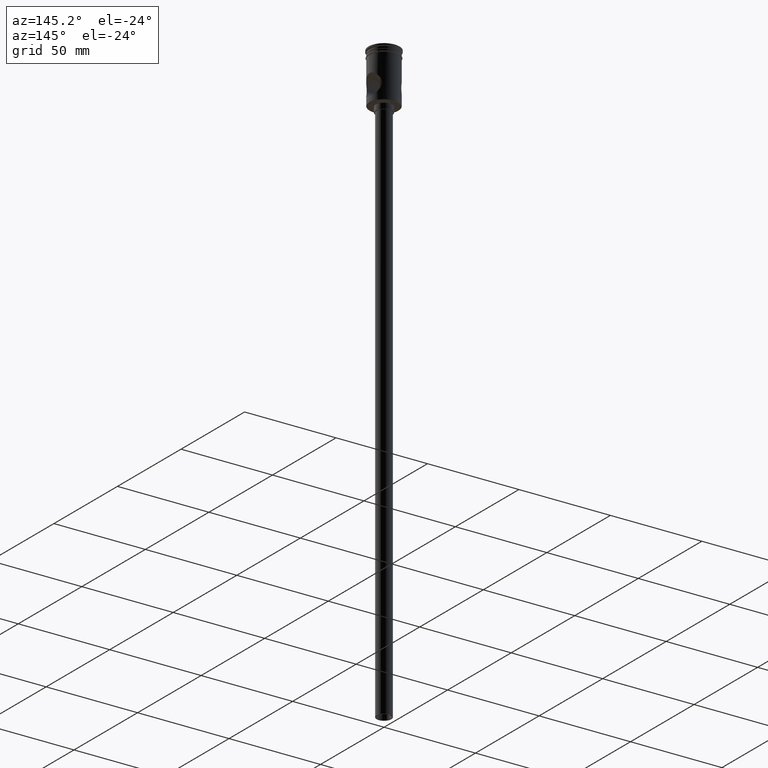
[diagram: clean part render]
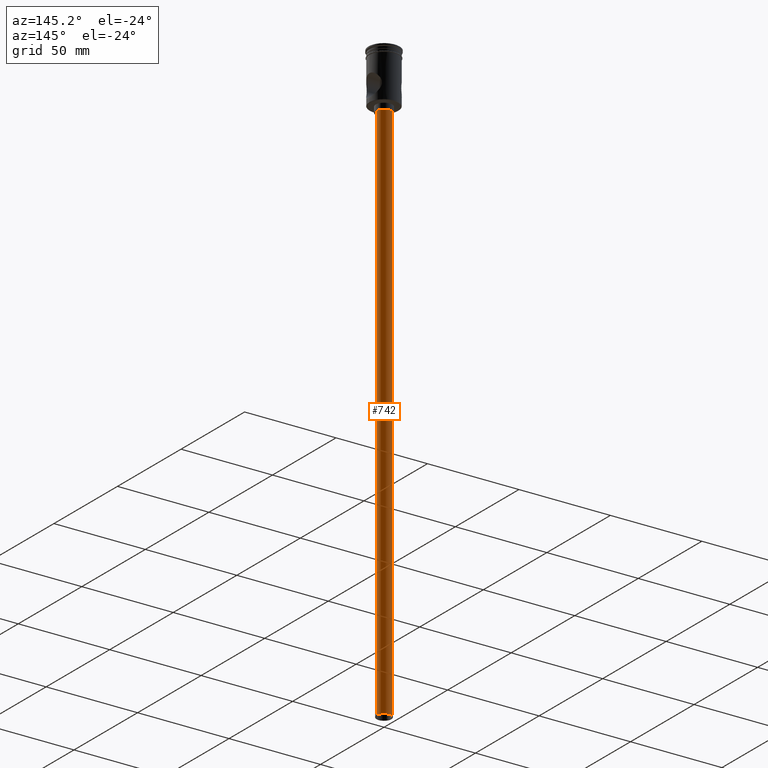
[diagram: same view with one face highlighted and labeled with its STEP entity id]
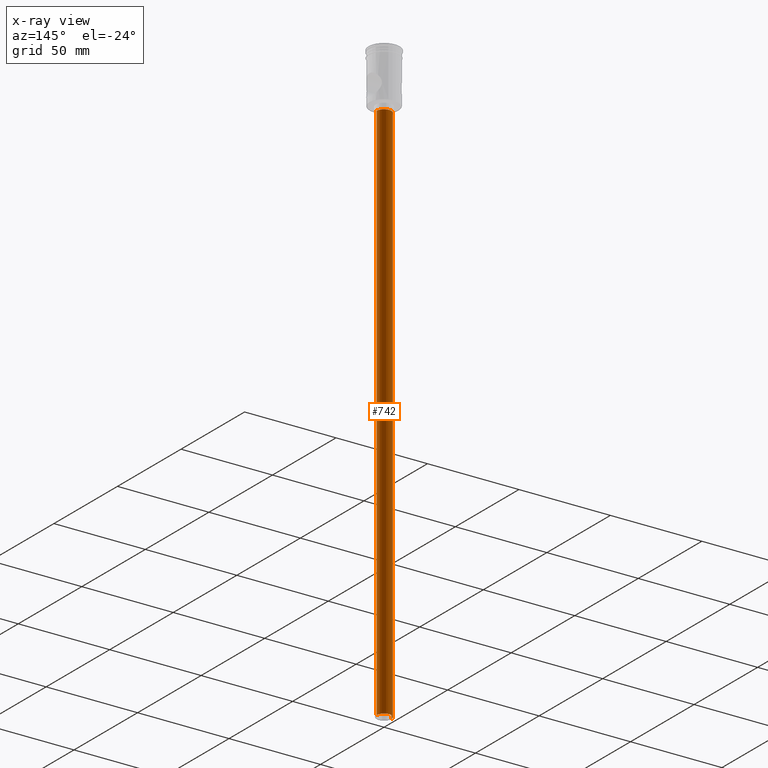
[diagram: x-ray of the same camera — body ghosted, the highlighted face saturated]
A machine part, auxiliary view. The second image highlights one B-rep face of the part: STEP entity #742.
The next image is the same camera in x-ray: the body ghosted, the highlighted face saturated — about 0% of this face is hidden behind the body in this view.
In plain terms, the highlighted cylindrical surface (edge-blend (fillet) strip) has radius 4 mm, axis along (-0, -0, 1).
Its self-contained STEP definition (entity closure, byte-faithful):
#4 = DIRECTION ( 'NONE',  ( -1.000000000000000000, 0.000000000000000000, 0.000000000000000000 ) ) ;
#32 = ORIENTED_EDGE ( 'NONE', *, *, #269, .T. ) ;
#147 = EDGE_LOOP ( 'NONE', ( #1203, #32, #348, #568 ) ) ;
#153 = EDGE_CURVE ( 'NONE', #1032, #475, #169, .T. ) ;
#169 = CIRCLE ( 'NONE', #1066, 4.000000000000000000 ) ;
#230 = CARTESIAN_POINT ( 'NONE',  ( 4.000000000000000000, 0.000000000000000000, -327.5000000000000000 ) ) ;
#266 = LINE ( 'NONE', #745, #267 ) ;
#267 = VECTOR ( 'NONE', #503, 1000.000000000000000 ) ;
#269 = EDGE_CURVE ( 'NONE', #1164, #1032, #266, .T. ) ;
#277 = CARTESIAN_POINT ( 'NONE',  ( -4.000000000000000000, 4.898587196589412829E-16, -327.5000000000000000 ) ) ;
#297 = DIRECTION ( 'NONE',  ( 1.000000000000000000, 0.000000000000000000, 0.000000000000000000 ) ) ;
#348 = ORIENTED_EDGE ( 'NONE', *, *, #153, .T. ) ;
#392 = CIRCLE ( 'NONE', #1094, 4.000000000000000000 ) ;
#458 = DIRECTION ( 'NONE',  ( -0.000000000000000000, -0.000000000000000000, 1.000000000000000000 ) ) ;
#475 = VERTEX_POINT ( 'NONE', #961 ) ;
#503 = DIRECTION ( 'NONE',  ( -0.000000000000000000, -0.000000000000000000, 1.000000000000000000 ) ) ;
#531 = DIRECTION ( 'NONE',  ( -0.000000000000000000, -0.000000000000000000, 1.000000000000000000 ) ) ;
#547 = DIRECTION ( 'NONE',  ( -1.000000000000000000, 0.000000000000000000, 0.000000000000000000 ) ) ;
#568 = ORIENTED_EDGE ( 'NONE', *, *, #1372, .F. ) ;
#687 = CARTESIAN_POINT ( 'NONE',  ( 0.000000000000000000, 0.000000000000000000, -327.5000000000000000 ) ) ;
#742 = ADVANCED_FACE ( 'NONE', ( #1236 ), #1245, .T. ) ;
#745 = CARTESIAN_POINT ( 'NONE',  ( -4.000000000000000000, 4.898587196589412829E-16, -327.5000000000000000 ) ) ;
#775 = CARTESIAN_POINT ( 'NONE',  ( -4.000000000000000000, 4.898587196589412829E-16, -30.50000000000000000 ) ) ;
#814 = AXIS2_PLACEMENT_3D ( 'NONE', #1470, #531, #297 ) ;
#815 = DIRECTION ( 'NONE',  ( 0.000000000000000000, 0.000000000000000000, -1.000000000000000000 ) ) ;
#820 = VECTOR ( 'NONE', #458, 1000.000000000000000 ) ;
#857 = EDGE_CURVE ( 'NONE', #1164, #1413, #392, .T. ) ;
#961 = CARTESIAN_POINT ( 'NONE',  ( 4.000000000000000000, 0.000000000000000000, -30.50000000000000000 ) ) ;
#1008 = DIRECTION ( 'NONE',  ( 0.000000000000000000, 0.000000000000000000, -1.000000000000000000 ) ) ;
#1032 = VERTEX_POINT ( 'NONE', #775 ) ;
#1066 = AXIS2_PLACEMENT_3D ( 'NONE', #1473, #1008, #547 ) ;
#1094 = AXIS2_PLACEMENT_3D ( 'NONE', #687, #815, #4 ) ;
#1164 = VERTEX_POINT ( 'NONE', #277 ) ;
#1176 = LINE ( 'NONE', #230, #820 ) ;
#1203 = ORIENTED_EDGE ( 'NONE', *, *, #857, .F. ) ;
#1236 = FACE_OUTER_BOUND ( 'NONE', #147, .T. ) ;
#1245 = CYLINDRICAL_SURFACE ( 'NONE', #814, 4.000000000000000000 ) ;
#1372 = EDGE_CURVE ( 'NONE', #1413, #475, #1176, .T. ) ;
#1413 = VERTEX_POINT ( 'NONE', #1435 ) ;
#1435 = CARTESIAN_POINT ( 'NONE',  ( 4.000000000000000000, 0.000000000000000000, -327.5000000000000000 ) ) ;
#1470 = CARTESIAN_POINT ( 'NONE',  ( 0.000000000000000000, 0.000000000000000000, -327.5000000000000000 ) ) ;
#1473 = CARTESIAN_POINT ( 'NONE',  ( 0.000000000000000000, 0.000000000000000000, -30.50000000000000000 ) ) ;